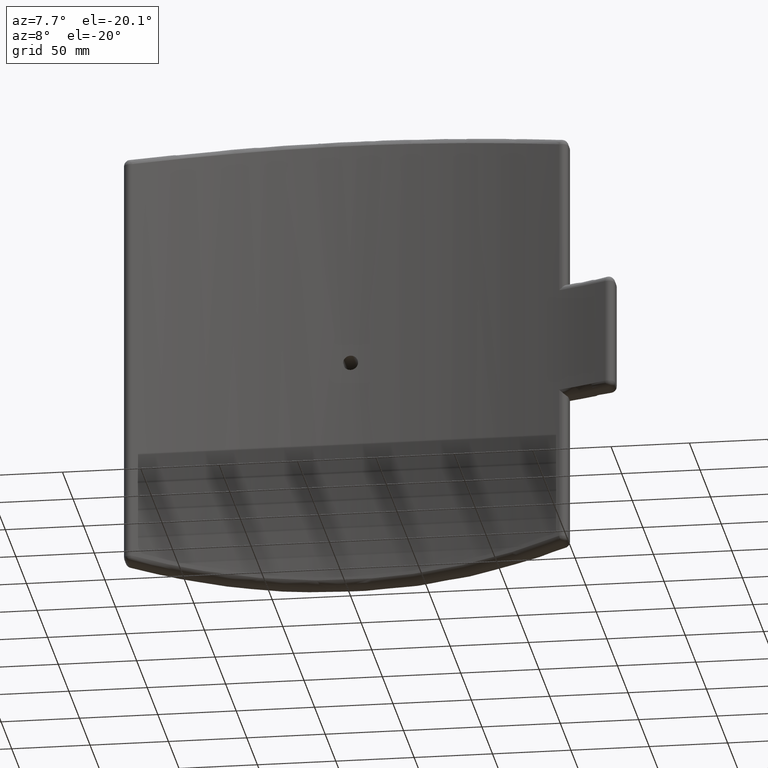
[diagram: clean part render]
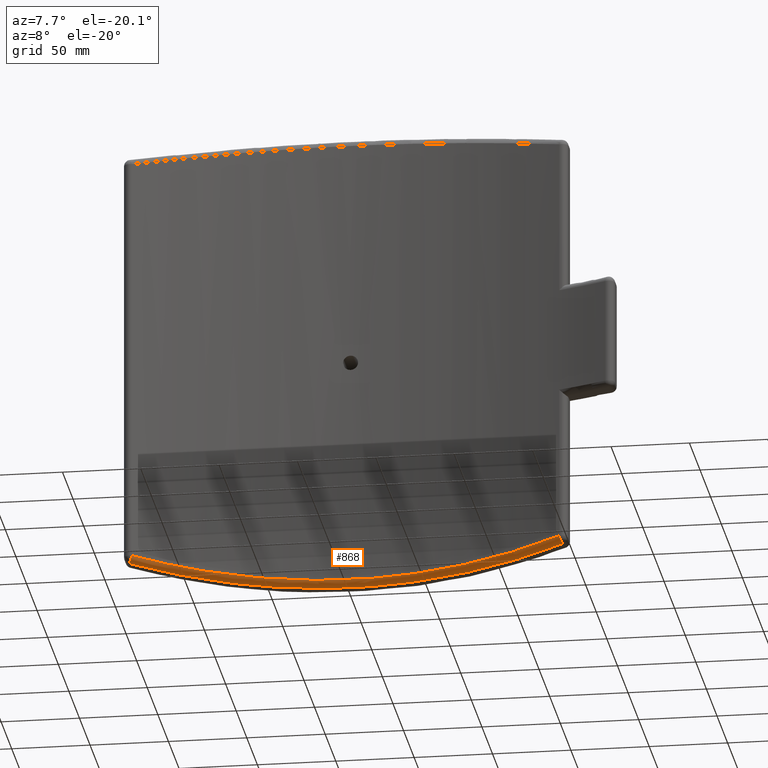
[diagram: same view with one face highlighted and labeled with its STEP entity id]
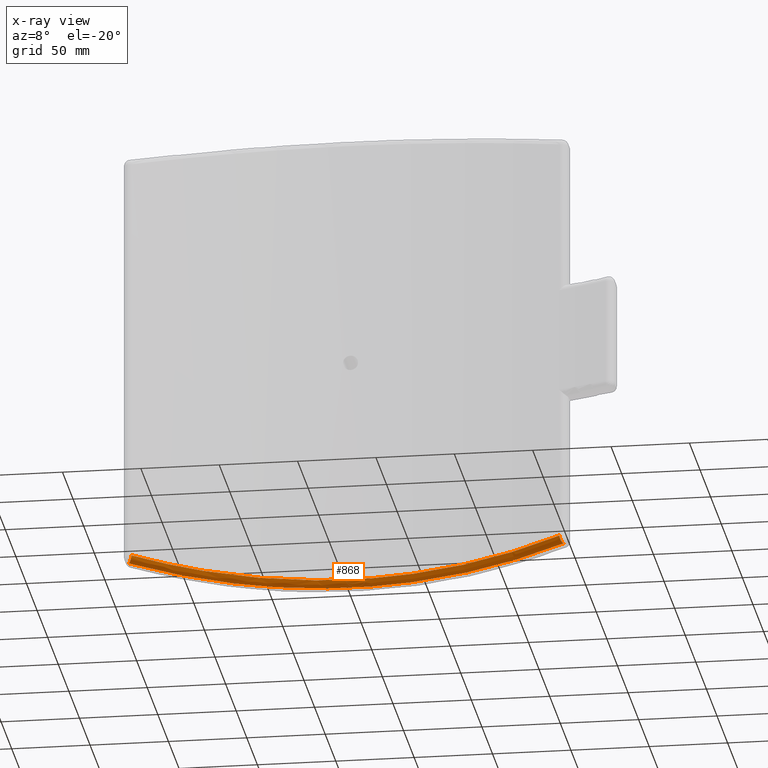
[diagram: x-ray of the same camera — body ghosted, the highlighted face saturated]
A machine part, auxiliary view. The second image highlights one B-rep face of the part: STEP entity #868.
The next image is the same camera in x-ray: the body ghosted, the highlighted face saturated — about 0% of this face is hidden behind the body in this view.
In plain terms, the highlighted face is a freeform B-spline surface patch.
Its self-contained STEP definition (entity closure, byte-faithful):
#93=B_SPLINE_SURFACE_WITH_KNOTS('',3,3,((#2127,#2128,#2129,#2130,#2131,
#2132,#2133),(#2134,#2135,#2136,#2137,#2138,#2139,#2140),(#2141,#2142,#2143,
#2144,#2145,#2146,#2147),(#2148,#2149,#2150,#2151,#2152,#2153,#2154),(#2155,
#2156,#2157,#2158,#2159,#2160,#2161),(#2162,#2163,#2164,#2165,#2166,#2167,
#2168)),.UNSPECIFIED.,.F.,.F.,.F.,(4,1,1,4),(4,1,1,1,4),(0.,0.285714285714286,
0.571428571428571,1.),(1.65560156803869,9.74157968563927,17.8275578032399,
25.9135359208404,29.9565249796407),.UNSPECIFIED.);
#112=B_SPLINE_CURVE_WITH_KNOTS('',3,(#2169,#2170,#2171,#2172,#2173,#2174,
#2175),.UNSPECIFIED.,.F.,.F.,(4,1,1,1,4),(-29.9565249796407,-25.9135359208404,
-17.8275578032399,-9.74157968563927,-1.65560156803869),.UNSPECIFIED.);
#113=B_SPLINE_CURVE_WITH_KNOTS('',3,(#2176,#2177,#2178,#2179,#2180,#2181,
#2182),.UNSPECIFIED.,.F.,.F.,(4,1,1,1,4),(1.65560156803869,9.74157968563927,
17.8275578032399,25.9135359208404,29.9565249796407),.UNSPECIFIED.);
#231=FACE_OUTER_BOUND('',#318,.T.);
#318=EDGE_LOOP('',(#745,#746,#747,#748));
#358=CIRCLE('',#932,4.);
#365=CIRCLE('',#942,4.00000000000002);
#432=VERTEX_POINT('',#1793);
#433=VERTEX_POINT('',#1795);
#438=VERTEX_POINT('',#1871);
#439=VERTEX_POINT('',#1872);
#507=EDGE_CURVE('',#432,#433,#358,.F.);
#515=EDGE_CURVE('',#438,#439,#365,.F.);
#571=EDGE_CURVE('',#433,#438,#112,.T.);
#572=EDGE_CURVE('',#439,#432,#113,.T.);
#745=ORIENTED_EDGE('',*,*,#507,.T.);
#746=ORIENTED_EDGE('',*,*,#571,.T.);
#747=ORIENTED_EDGE('',*,*,#515,.T.);
#748=ORIENTED_EDGE('',*,*,#572,.T.);
#868=ADVANCED_FACE('',(#231),#93,.F.);
#932=AXIS2_PLACEMENT_3D('',#1797,#1111,#1112);
#942=AXIS2_PLACEMENT_3D('',#1873,#1131,#1132);
#1111=DIRECTION('center_axis',(0.922436725609501,-0.334567633765934,0.192808157719239));
#1112=DIRECTION('ref_axis',(0.204598832189973,0.,-0.978845911196701));
#1131=DIRECTION('center_axis',(-0.922436725609501,-0.334567633765924,0.192808157719252));
#1132=DIRECTION('ref_axis',(0.340965346534644,-0.940075865269665,0.));
#1793=CARTESIAN_POINT('',(138.568395328763,379.790649568942,-135.672996718801));
#1795=CARTESIAN_POINT('',(136.386138613865,376.030346107864,-131.757613074014));
#1797=CARTESIAN_POINT('Origin',(137.750000000003,379.790649568942,-131.757613074014));
#1871=CARTESIAN_POINT('',(-136.386138613858,376.030346107866,-131.757613074014));
#1872=CARTESIAN_POINT('',(-138.568395328756,379.790649568945,-135.672996718801));
#1873=CARTESIAN_POINT('Origin',(-137.749999999996,379.790649568945,-131.757613074014));
#2127=CARTESIAN_POINT('Ctrl Pts',(-138.568395328756,379.790649568945,-135.672996718801));
#2128=CARTESIAN_POINT('Ctrl Pts',(-113.556489039839,388.808884649425,-140.900997121133));
#2129=CARTESIAN_POINT('Ctrl Pts',(-61.2590063365117,402.112309878542,-148.846405047353));
#2130=CARTESIAN_POINT('Ctrl Pts',(20.5158493136542,406.210271380741,-151.342169564409));
#2131=CARTESIAN_POINT('Ctrl Pts',(87.712685152176,396.060459390269,-145.200325942912));
#2132=CARTESIAN_POINT('Ctrl Pts',(126.062333347387,384.29980635117,-138.287019669111));
#2133=CARTESIAN_POINT('Ctrl Pts',(138.568395328763,379.790649568942,-135.672996718801));
#2134=CARTESIAN_POINT('Ctrl Pts',(-138.363715332653,379.201671127263,-135.715779027739));
#2135=CARTESIAN_POINT('Ctrl Pts',(-113.389028919863,388.216036605189,-140.927898281283));
#2136=CARTESIAN_POINT('Ctrl Pts',(-61.1688431551785,401.514519004917,-148.849796667034));
#2137=CARTESIAN_POINT('Ctrl Pts',(20.4856640028115,405.611133310959,-151.338211913276));
#2138=CARTESIAN_POINT('Ctrl Pts',(87.5834828847504,395.46480681947,-145.214458029847));
#2139=CARTESIAN_POINT('Ctrl Pts',(125.876263451306,383.708893091373,-138.321861334549));
#2140=CARTESIAN_POINT('Ctrl Pts',(138.36371533266,379.20167112726,-135.715779027739));
#2141=CARTESIAN_POINT('Ctrl Pts',(-137.89419927443,378.026780467997,-135.508223144019));
#2142=CARTESIAN_POINT('Ctrl Pts',(-113.006818834782,387.033316170021,-140.695571411901));
#2143=CARTESIAN_POINT('Ctrl Pts',(-60.964392318015,400.321620294273,-148.581025172899));
#2144=CARTESIAN_POINT('Ctrl Pts',(20.417344580224,404.415531540902,-151.058194197371));
#2145=CARTESIAN_POINT('Ctrl Pts',(87.2896039489904,394.276295622872,-144.962267699277));
#2146=CARTESIAN_POINT('Ctrl Pts',(125.450400759558,382.530087510085,-138.10191985021));
#2147=CARTESIAN_POINT('Ctrl Pts',(137.894199274437,378.026780467995,-135.508223144019));
#2148=CARTESIAN_POINT('Ctrl Pts',(-137.03407230226,376.407092468934,-134.203726853476));
#2149=CARTESIAN_POINT('Ctrl Pts',(-112.306637814322,385.389604334771,-139.378576040002));
#2150=CARTESIAN_POINT('Ctrl Pts',(-60.5906709113763,398.644114802368,-147.24546000372));
#2151=CARTESIAN_POINT('Ctrl Pts',(20.2925130530696,402.727810293372,-149.716961662781));
#2152=CARTESIAN_POINT('Ctrl Pts',(86.7518351094214,392.613996045933,-143.635137207012));
#2153=CARTESIAN_POINT('Ctrl Pts',(124.670247459233,380.898387488391,-136.7911739646));
#2154=CARTESIAN_POINT('Ctrl Pts',(137.034072302267,376.407092468931,-134.203726853476));
#2155=CARTESIAN_POINT('Ctrl Pts',(-136.556063391903,375.968714421561,-132.677516180863));
#2156=CARTESIAN_POINT('Ctrl Pts',(-111.912944397968,384.919741648864,-137.866005146766));
#2157=CARTESIAN_POINT('Ctrl Pts',(-60.3761240358325,398.12568262812,-145.752544849449));
#2158=CARTESIAN_POINT('Ctrl Pts',(20.2205132551771,402.194494032017,-148.2298155571));
#2159=CARTESIAN_POINT('Ctrl Pts',(86.4460557936579,392.117748938273,-142.133416268333));
#2160=CARTESIAN_POINT('Ctrl Pts',(124.234396662768,380.444266984749,-135.271783241028));
#2161=CARTESIAN_POINT('Ctrl Pts',(136.55606339191,375.968714421559,-132.677516180863));
#2162=CARTESIAN_POINT('Ctrl Pts',(-136.386138613858,376.030346107866,-131.757613074014));
#2163=CARTESIAN_POINT('Ctrl Pts',(-111.768134558721,384.959291732104,-136.954736514122));
#2164=CARTESIAN_POINT('Ctrl Pts',(-60.2942634194222,398.130999879744,-144.853218265608));
#2165=CARTESIAN_POINT('Ctrl Pts',(20.1927536335725,402.188387505684,-147.334242610363));
#2166=CARTESIAN_POINT('Ctrl Pts',(86.3313341182626,392.139068703236,-141.228673177637));
#2167=CARTESIAN_POINT('Ctrl Pts',(124.077029463407,380.494857773435,-134.356197408854));
#2168=CARTESIAN_POINT('Ctrl Pts',(136.386138613865,376.030346107863,-131.757613074014));
#2169=CARTESIAN_POINT('Ctrl Pts',(136.386138613865,376.030346107863,-131.757613074014));
#2170=CARTESIAN_POINT('Ctrl Pts',(124.077029463407,380.494857773435,-134.356197408854));
#2171=CARTESIAN_POINT('Ctrl Pts',(86.3313341182626,392.139068703236,-141.228673177637));
#2172=CARTESIAN_POINT('Ctrl Pts',(20.1927536335725,402.188387505684,-147.334242610363));
#2173=CARTESIAN_POINT('Ctrl Pts',(-60.2942634194222,398.130999879744,-144.853218265608));
#2174=CARTESIAN_POINT('Ctrl Pts',(-111.768134558721,384.959291732104,-136.954736514122));
#2175=CARTESIAN_POINT('Ctrl Pts',(-136.386138613858,376.030346107866,-131.757613074014));
#2176=CARTESIAN_POINT('Ctrl Pts',(-138.568395328756,379.790649568945,-135.672996718801));
#2177=CARTESIAN_POINT('Ctrl Pts',(-113.556489039839,388.808884649425,-140.900997121133));
#2178=CARTESIAN_POINT('Ctrl Pts',(-61.2590063365117,402.112309878542,-148.846405047353));
#2179=CARTESIAN_POINT('Ctrl Pts',(20.5158493136542,406.210271380741,-151.342169564409));
#2180=CARTESIAN_POINT('Ctrl Pts',(87.712685152176,396.060459390269,-145.200325942912));
#2181=CARTESIAN_POINT('Ctrl Pts',(126.062333347387,384.29980635117,-138.287019669111));
#2182=CARTESIAN_POINT('Ctrl Pts',(138.568395328763,379.790649568942,-135.672996718801));